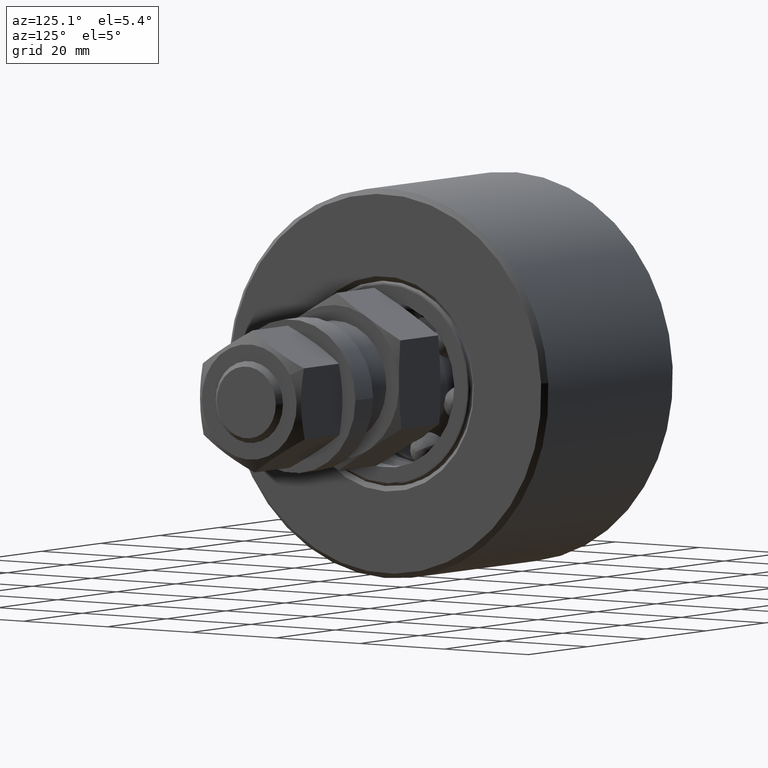
[diagram: clean part render]
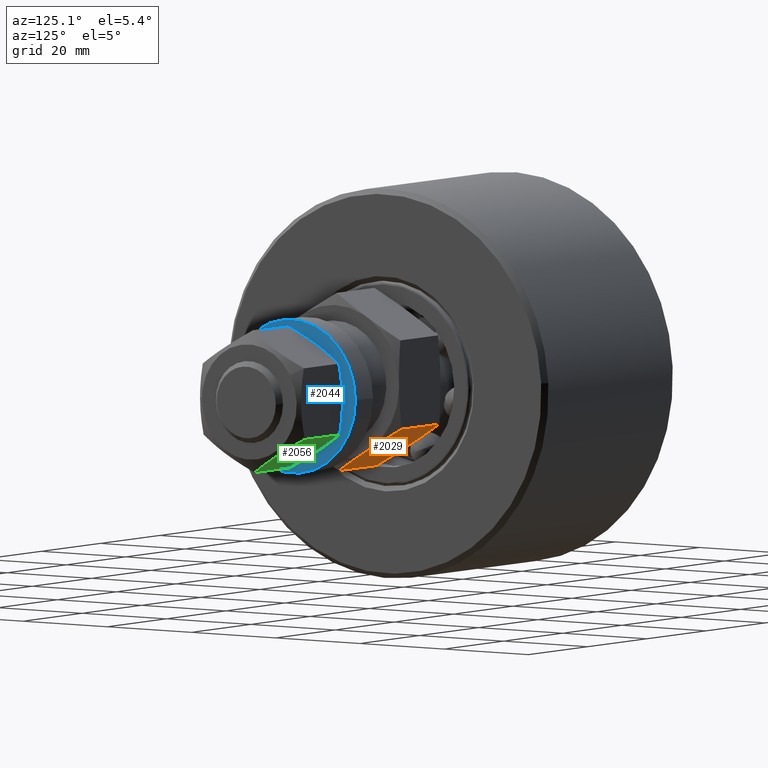
[diagram: same view with three faces highlighted in distinct colors, each labeled with its STEP entity id]
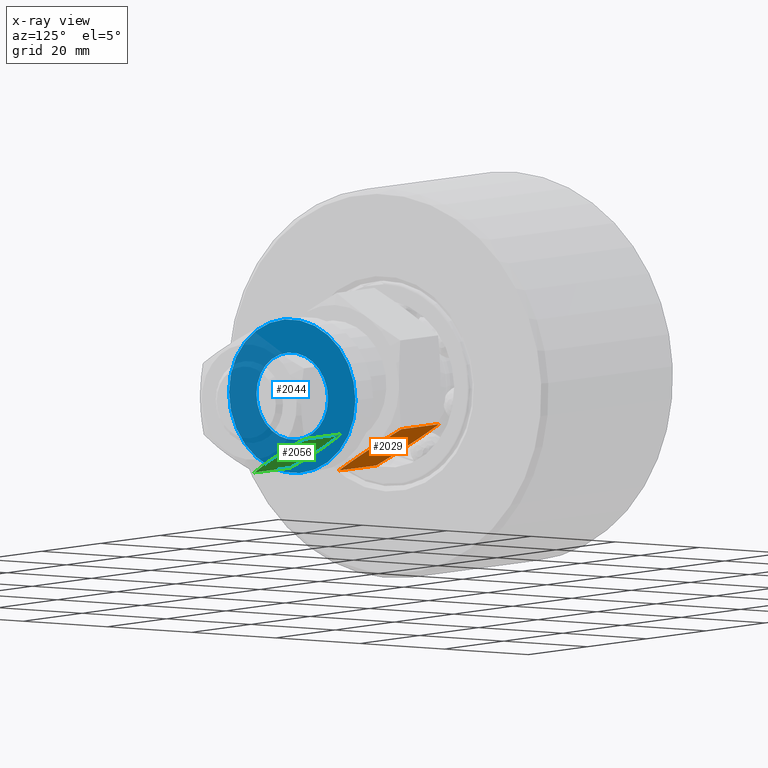
[diagram: x-ray of the same camera — body ghosted, the three highlighted faces saturated]
A machine part, auxiliary view with three faces highlighted in distinct colors.
The next image is the same camera in x-ray (body ghosted, the three faces saturated) — at least one of them is partly hidden behind the body in this view.
Their STEP definitions:

[orange] entity #2029 — the highlighted planar face has unit normal (0, 0.5122, -0.8589).
#196=(
BOUNDED_CURVE()
B_SPLINE_CURVE(2,(#3287,#3288,#3289),.UNSPECIFIED.,.F.,.F.)
B_SPLINE_CURVE_WITH_KNOTS((3,3),(0.,0.790327458731379),.UNSPECIFIED.)
CURVE()
GEOMETRIC_REPRESENTATION_ITEM()
RATIONAL_B_SPLINE_CURVE((1.,1.03103791671952,1.))
REPRESENTATION_ITEM('')
);
#198=(
BOUNDED_CURVE()
B_SPLINE_CURVE(2,(#3298,#3299,#3300),.UNSPECIFIED.,.F.,.F.)
B_SPLINE_CURVE_WITH_KNOTS((3,3),(0.,0.790327458731379),.UNSPECIFIED.)
CURVE()
GEOMETRIC_REPRESENTATION_ITEM()
RATIONAL_B_SPLINE_CURVE((1.,1.03103791671952,1.))
REPRESENTATION_ITEM('')
);
#210=(
BOUNDED_CURVE()
B_SPLINE_CURVE(2,(#3364,#3365,#3366),.UNSPECIFIED.,.F.,.F.)
B_SPLINE_CURVE_WITH_KNOTS((3,3),(0.,0.790327458731372),.UNSPECIFIED.)
CURVE()
GEOMETRIC_REPRESENTATION_ITEM()
RATIONAL_B_SPLINE_CURVE((1.,1.03103791671951,1.))
REPRESENTATION_ITEM('')
);
#212=(
BOUNDED_CURVE()
B_SPLINE_CURVE(2,(#3375,#3376,#3377),.UNSPECIFIED.,.F.,.F.)
B_SPLINE_CURVE_WITH_KNOTS((3,3),(0.,0.790327458731372),.UNSPECIFIED.)
CURVE()
GEOMETRIC_REPRESENTATION_ITEM()
RATIONAL_B_SPLINE_CURVE((1.,1.03103791671951,1.))
REPRESENTATION_ITEM('')
);
#253=PLANE('',#2364);
#342=FACE_OUTER_BOUND('',#465,.T.);
#465=EDGE_LOOP('',(#1579,#1580,#1581,#1582,#1583,#1584,#1585,#1586));
#588=LINE('',#3420,#662);
#594=LINE('',#3427,#668);
#600=LINE('',#3436,#674);
#602=LINE('',#3439,#676);
#662=VECTOR('',#2744,10.);
#668=VECTOR('',#2752,10.);
#674=VECTOR('',#2764,10.);
#676=VECTOR('',#2768,10.);
#878=VERTEX_POINT('',#3285);
#879=VERTEX_POINT('',#3286);
#881=VERTEX_POINT('',#3296);
#882=VERTEX_POINT('',#3297);
#899=VERTEX_POINT('',#3362);
#900=VERTEX_POINT('',#3363);
#902=VERTEX_POINT('',#3373);
#903=VERTEX_POINT('',#3374);
#1110=EDGE_CURVE('',#878,#879,#196,.T.);
#1113=EDGE_CURVE('',#881,#882,#198,.T.);
#1131=EDGE_CURVE('',#899,#900,#210,.T.);
#1134=EDGE_CURVE('',#902,#903,#212,.T.);
#1149=EDGE_CURVE('',#882,#878,#588,.T.);
#1155=EDGE_CURVE('',#900,#902,#594,.T.);
#1161=EDGE_CURVE('',#903,#881,#600,.T.);
#1163=EDGE_CURVE('',#899,#879,#602,.T.);
#1579=ORIENTED_EDGE('',*,*,#1113,.T.);
#1580=ORIENTED_EDGE('',*,*,#1149,.T.);
#1581=ORIENTED_EDGE('',*,*,#1110,.T.);
#1582=ORIENTED_EDGE('',*,*,#1163,.F.);
#1583=ORIENTED_EDGE('',*,*,#1131,.T.);
#1584=ORIENTED_EDGE('',*,*,#1155,.T.);
#1585=ORIENTED_EDGE('',*,*,#1134,.T.);
#1586=ORIENTED_EDGE('',*,*,#1161,.T.);
#2029=ADVANCED_FACE('',(#342),#253,.T.);
#2364=AXIS2_PLACEMENT_3D('',#3441,#2771,#2772);
#2744=DIRECTION('',(0.,0.,1.));
#2752=DIRECTION('',(0.,0.,-1.));
#2764=DIRECTION('',(-1.,0.,0.));
#2768=DIRECTION('',(-1.,0.,0.));
#2771=DIRECTION('center_axis',(0.,1.,0.));
#2772=DIRECTION('ref_axis',(0.,0.,-1.));
#3285=CARTESIAN_POINT('',(1.5,15.,0.784641862145888));
#3286=CARTESIAN_POINT('',(2.11628314259158,15.,8.66025403784438));
#3287=CARTESIAN_POINT('Ctrl Pts',(1.5,15.,0.784641862145854));
#3288=CARTESIAN_POINT('Ctrl Pts',(1.55119818764891,15.,4.44240251296674));
#3289=CARTESIAN_POINT('Ctrl Pts',(2.11628314259158,15.,8.66025403784439));
#3296=CARTESIAN_POINT('',(2.11628314259158,15.,-8.66025403784439));
#3297=CARTESIAN_POINT('',(1.5,15.,-0.784641862145888));
#3298=CARTESIAN_POINT('Ctrl Pts',(2.11628314259158,15.,-8.66025403784439));
#3299=CARTESIAN_POINT('Ctrl Pts',(1.55119818764891,15.,-4.44240251296674));
#3300=CARTESIAN_POINT('Ctrl Pts',(1.5,15.,-0.784641862145854));
#3362=CARTESIAN_POINT('',(14.8837168574084,15.,8.66025403784438));
#3363=CARTESIAN_POINT('',(15.5,15.,0.784641862145888));
#3364=CARTESIAN_POINT('Ctrl Pts',(14.8837168574084,15.,8.6602540378444));
#3365=CARTESIAN_POINT('Ctrl Pts',(15.4488018123511,15.,4.44240251296679));
#3366=CARTESIAN_POINT('Ctrl Pts',(15.5,15.,0.784641862145928));
#3373=CARTESIAN_POINT('',(15.5,15.,-0.784641862145888));
#3374=CARTESIAN_POINT('',(14.8837168574084,15.,-8.66025403784439));
#3375=CARTESIAN_POINT('Ctrl Pts',(15.5,15.,-0.784641862145928));
#3376=CARTESIAN_POINT('Ctrl Pts',(15.4488018123511,15.,-4.44240251296679));
#3377=CARTESIAN_POINT('Ctrl Pts',(14.8837168574084,15.,-8.6602540378444));
#3420=CARTESIAN_POINT('',(1.5,15.,-5.55111512312578E-16));
#3427=CARTESIAN_POINT('',(15.5,15.,8.66025403784439));
#3436=CARTESIAN_POINT('',(15.5,15.,-8.66025403784439));
#3439=CARTESIAN_POINT('',(15.5,15.,8.66025403784439));
#3441=CARTESIAN_POINT('Origin',(15.5,15.,-1.11022302462516E-15));

[blue] entity #2044 — the highlighted planar face has unit normal (-1, -0, 0).
#168=FACE_BOUND('',#485,.T.);
#258=PLANE('',#2401);
#357=FACE_OUTER_BOUND('',#484,.T.);
#484=EDGE_LOOP('',(#1643));
#485=EDGE_LOOP('',(#1644));
#765=CIRCLE('',#2397,8.5);
#766=CIRCLE('',#2399,15.);
#931=VERTEX_POINT('',#3499);
#932=VERTEX_POINT('',#3503);
#1190=EDGE_CURVE('',#931,#931,#765,.T.);
#1191=EDGE_CURVE('',#932,#932,#766,.T.);
#1643=ORIENTED_EDGE('',*,*,#1191,.F.);
#1644=ORIENTED_EDGE('',*,*,#1190,.T.);
#2044=ADVANCED_FACE('',(#357,#168),#258,.F.);
#2397=AXIS2_PLACEMENT_3D('',#3501,#2846,#2847);
#2399=AXIS2_PLACEMENT_3D('',#3504,#2850,#2851);
#2401=AXIS2_PLACEMENT_3D('',#3508,#2855,#2856);
#2846=DIRECTION('center_axis',(-1.,0.,0.));
#2847=DIRECTION('ref_axis',(0.,-1.,0.));
#2850=DIRECTION('center_axis',(-1.,0.,0.));
#2851=DIRECTION('ref_axis',(0.,-1.,0.));
#2855=DIRECTION('center_axis',(-1.,0.,0.));
#2856=DIRECTION('ref_axis',(0.,0.,1.));
#3499=CARTESIAN_POINT('',(3.,8.5,1.04094977927525E-15));
#3501=CARTESIAN_POINT('Origin',(3.,0.,0.));
#3503=CARTESIAN_POINT('',(3.,15.,1.83697019872103E-15));
#3504=CARTESIAN_POINT('Origin',(3.,0.,0.));
#3508=CARTESIAN_POINT('Origin',(3.,0.,0.));

[green] entity #2056 — the highlighted planar face has unit normal (0, 0.5122, -0.8589).
#220=(
BOUNDED_CURVE()
B_SPLINE_CURVE(2,(#3536,#3537,#3538),.UNSPECIFIED.,.F.,.F.)
B_SPLINE_CURVE_WITH_KNOTS((3,3),(0.,1.4021233656935),.UNSPECIFIED.)
CURVE()
GEOMETRIC_REPRESENTATION_ITEM()
RATIONAL_B_SPLINE_CURVE((1.,1.15470053837925,1.))
REPRESENTATION_ITEM('')
);
#230=(
BOUNDED_CURVE()
B_SPLINE_CURVE(2,(#3579,#3580,#3581),.UNSPECIFIED.,.F.,.F.)
B_SPLINE_CURVE_WITH_KNOTS((3,3),(0.,1.40212336569351),.UNSPECIFIED.)
CURVE()
GEOMETRIC_REPRESENTATION_ITEM()
RATIONAL_B_SPLINE_CURVE((1.,1.15470053837925,1.))
REPRESENTATION_ITEM('')
);
#265=PLANE('',#2421);
#369=FACE_OUTER_BOUND('',#500,.T.);
#500=EDGE_LOOP('',(#1695,#1696,#1697,#1698));
#621=LINE('',#3591,#695);
#622=LINE('',#3593,#696);
#695=VECTOR('',#2903,10.);
#696=VECTOR('',#2906,10.);
#941=VERTEX_POINT('',#3534);
#942=VERTEX_POINT('',#3535);
#951=VERTEX_POINT('',#3574);
#952=VERTEX_POINT('',#3578);
#1204=EDGE_CURVE('',#941,#942,#220,.T.);
#1216=EDGE_CURVE('',#952,#951,#230,.T.);
#1221=EDGE_CURVE('',#941,#951,#621,.T.);
#1222=EDGE_CURVE('',#942,#952,#622,.T.);
#1695=ORIENTED_EDGE('',*,*,#1204,.T.);
#1696=ORIENTED_EDGE('',*,*,#1222,.T.);
#1697=ORIENTED_EDGE('',*,*,#1216,.T.);
#1698=ORIENTED_EDGE('',*,*,#1221,.F.);
#2056=ADVANCED_FACE('',(#369),#265,.T.);
#2421=AXIS2_PLACEMENT_3D('',#3592,#2904,#2905);
#2903=DIRECTION('',(1.,0.,0.));
#2904=DIRECTION('center_axis',(0.,0.,1.));
#2905=DIRECTION('ref_axis',(1.,0.,0.));
#2906=DIRECTION('',(1.,0.,0.));
#3534=CARTESIAN_POINT('',(1.50480947161671,6.92820323027552,12.));
#3535=CARTESIAN_POINT('',(1.50480947161671,-6.92820323027552,12.));
#3536=CARTESIAN_POINT('Ctrl Pts',(1.50480947161671,6.92820323027552,12.));
#3537=CARTESIAN_POINT('Ctrl Pts',(-0.495190528383293,0.,12.));
#3538=CARTESIAN_POINT('Ctrl Pts',(1.50480947161671,-6.92820323027552,12.));
#3574=CARTESIAN_POINT('',(13.2951905283833,6.92820323027552,12.));
#3578=CARTESIAN_POINT('',(13.2951905283833,-6.92820323027552,12.));
#3579=CARTESIAN_POINT('Ctrl Pts',(13.2951905283833,-6.92820323027553,12.));
#3580=CARTESIAN_POINT('Ctrl Pts',(15.2951905283833,0.,12.));
#3581=CARTESIAN_POINT('Ctrl Pts',(13.2951905283833,6.92820323027553,12.));
#3591=CARTESIAN_POINT('',(0.,6.92820323027551,12.));
#3592=CARTESIAN_POINT('Origin',(0.,-6.92820323027551,12.));
#3593=CARTESIAN_POINT('',(0.,-6.92820323027551,12.));